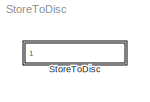
MODEL StoreToDisc
KIND model
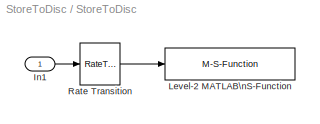
BLOCK [SubSystem] StoreToDisc
  FunctionWithSeparateData = off
  MaskCallbackString = |||
  MaskDescription = This block stores a bus at the inport in an ASCII file, while retaining the named bus structure by '__' delimiters.
  MaskDisplay = disp(sFileName)
  MaskEnableString = on,on,on,on
  MaskHelp = This block stores a bus at the inport in an ASCII file, while retaining the named bus structure by '__' delimiters.
  MaskHideContents = off
  MaskIconFrame = on
  MaskIconOpaque = on
  MaskIconRotate = none
  MaskIconUnits = autoscale
  MaskInitialization = % vtStoreToDiscBusInSet; % not used as VehEMent model can not be set to 'StrictBusMsg' = 'ErrorLevel1'
  MaskPortRotate = default
  MaskPromptString = Sample time [s] (offset is 0)|File name of ASCII storage file|Make file name unique|Signal names of input
  MaskStyleString = edit,edit,checkbox,edit
  MaskToolTipString = on,on,on,on
  MaskTunableValueString = off,off,off,off
  MaskType = StoreToDisc
  MaskValueString = 0.1|StoreTest.txt|off|{'BusName1__clock','BusName1__pulse','BusName1__sequence_Stair','BusName1__sine'}
  MaskVariables = sSampleTime=@1;sFileName=&2;bFileUnique=@3;cSignal=@4;
  MaskVisibilityString = on,on,on,on
  MinAlgLoopOccurrences = off
  Opaque = off
  Ports = [1]
  PropExecContextOutsideSubsystem = off
  RTWSystemCode = Auto
  RequestExecContextInheritance = off
  SID = 4
BLOCK [Inport] StoreToDisc/In1
  IconDisplay = Port number
  SID = 6
BLOCK [M-S-Function] StoreToDisc/Level-2 MATLAB\nS-Function
  FunctionName = StoreToDiscSFunc
  Parameters = sSampleTime,sFileName,bFileUnique,cSignal
  Ports = [1]
  SID = 3
BLOCK [RateTransition] StoreToDisc/Rate Transition
  OutPortSampleTime = sSampleTime
  SID = 2
LINE StoreToDisc/In1:1 -> StoreToDisc/Rate Transition:1
LINE StoreToDisc/Rate Transition:1 -> StoreToDisc/Level-2 MATLAB\nS-Function:1
